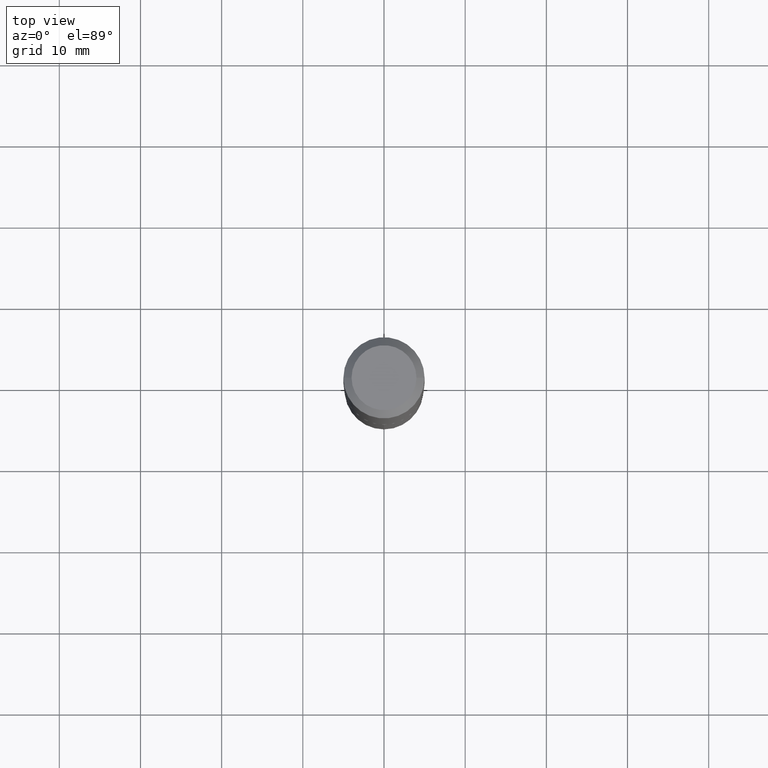
[diagram: clean part render]
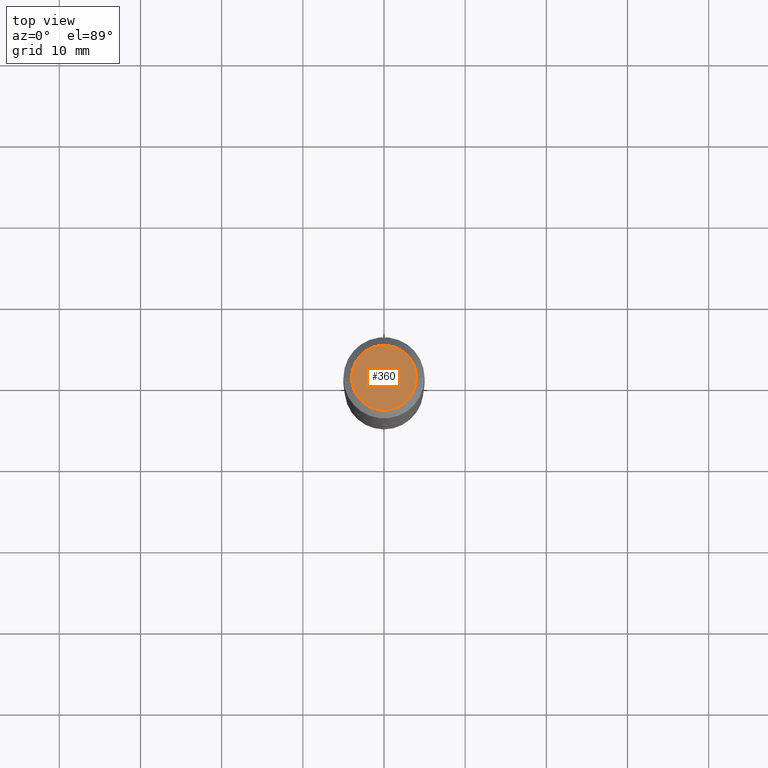
[diagram: same view with one face highlighted and labeled with its STEP entity id]
A machine part, top view. The second image highlights one B-rep face of the part: STEP entity #360.
In plain terms, the highlighted planar face has unit normal (0, -0, -1).
Its self-contained STEP definition (entity closure, byte-faithful):
#40 = DIRECTION ( 'NONE',  ( 1.000000000000000000, -6.982962677686265922E-15, 4.876223630392693006E-29 ) ) ;
#62 = AXIS2_PLACEMENT_3D ( 'NONE', #315, #120, #272 ) ;
#88 = CIRCLE ( 'NONE', #216, 0.1574800000000000089 ) ;
#105 = CARTESIAN_POINT ( 'NONE',  ( -9.427742298522567634E-47, 1.346031739168368355E-32, 3.855188123715870730E-18 ) ) ;
#112 = DIRECTION ( 'NONE',  ( -2.445468806185136597E-29, 3.491481338843145583E-15, 1.000000000000000000 ) ) ;
#120 = DIRECTION ( 'NONE',  ( 2.438088387897960049E-29, -3.491481338843145188E-15, -1.000000000000000000 ) ) ;
#139 = VERTEX_POINT ( 'NONE', #413 ) ;
#142 = ORIENTED_EDGE ( 'NONE', *, *, #410, .T. ) ;
#159 = VERTEX_POINT ( 'NONE', #185 ) ;
#185 = CARTESIAN_POINT ( 'NONE',  ( 0.1574800000000000089, -1.284169937930321189E-15, 3.855188123724205385E-18 ) ) ;
#216 = AXIS2_PLACEMENT_3D ( 'NONE', #461, #270, #40 ) ;
#227 = DIRECTION ( 'NONE',  ( 1.000000000000000000, -6.982962677686265922E-15, 4.876223630392693006E-29 ) ) ;
#270 = DIRECTION ( 'NONE',  ( -2.445468806185136597E-29, 3.491481338843145583E-15, 1.000000000000000000 ) ) ;
#272 = DIRECTION ( 'NONE',  ( -1.000000000000000000, 6.982962677686265922E-15, -4.876176775795935793E-29 ) ) ;
#313 = ORIENTED_EDGE ( 'NONE', *, *, #326, .T. ) ;
#315 = CARTESIAN_POINT ( 'NONE',  ( -4.713871149261283817E-47, 6.730158695841841775E-33, 1.927594061857935365E-18 ) ) ;
#326 = EDGE_CURVE ( 'NONE', #139, #159, #88, .T. ) ;
#330 = AXIS2_PLACEMENT_3D ( 'NONE', #105, #112, #227 ) ;
#351 = FACE_OUTER_BOUND ( 'NONE', #397, .T. ) ;
#360 = ADVANCED_FACE ( 'NONE', ( #351 ), #488, .F. ) ;
#397 = EDGE_LOOP ( 'NONE', ( #313, #142 ) ) ;
#410 = EDGE_CURVE ( 'NONE', #159, #139, #477, .T. ) ;
#413 = CARTESIAN_POINT ( 'NONE',  ( -0.1574800000000000089, 1.168406772637159618E-15, 3.855188123707939751E-18 ) ) ;
#461 = CARTESIAN_POINT ( 'NONE',  ( -9.427742298522567634E-47, 1.346031739168368355E-32, 3.855188123715870730E-18 ) ) ;
#477 = CIRCLE ( 'NONE', #330, 0.1574800000000000089 ) ;
#488 = PLANE ( 'NONE',  #62 ) ;